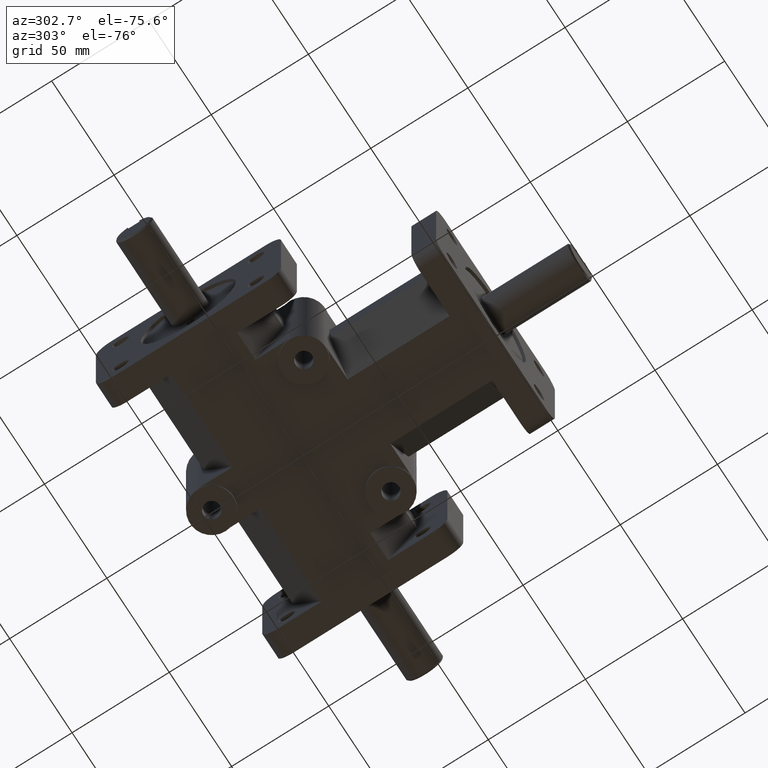
[diagram: clean part render]
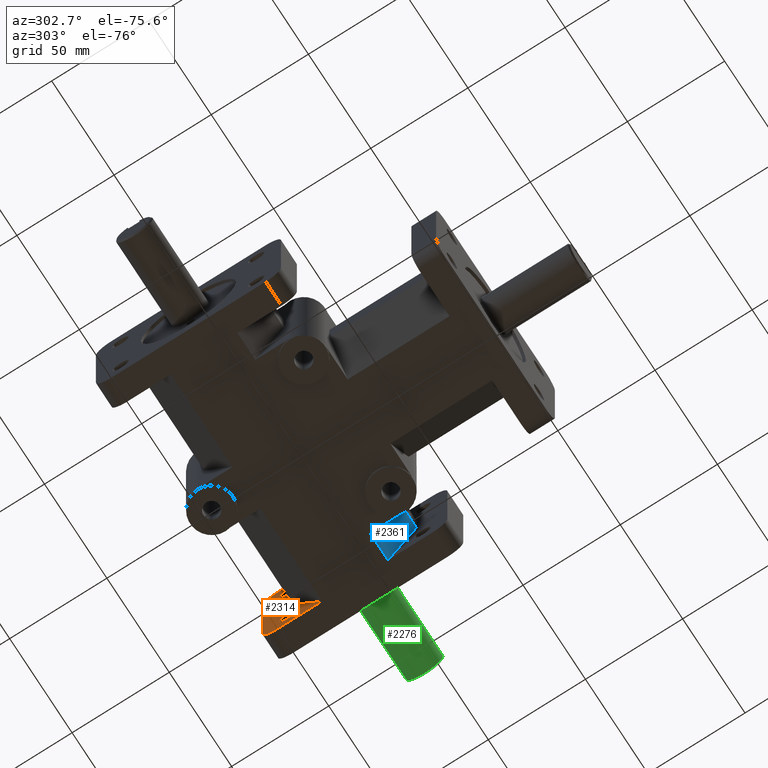
[diagram: same view with three faces highlighted in distinct colors, each labeled with its STEP entity id]
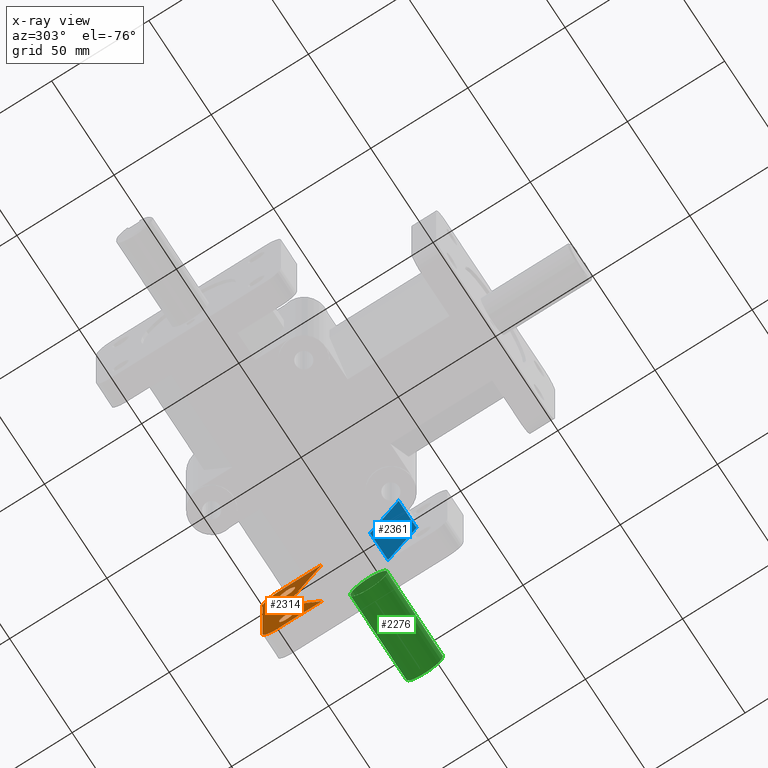
[diagram: x-ray of the same camera — body ghosted, the three highlighted faces saturated]
A machine part, auxiliary view with three faces highlighted in distinct colors.
The next image is the same camera in x-ray (body ghosted, the three faces saturated) — at least one of them is partly hidden behind the body in this view.
Their STEP definitions:

[orange] entity #2314 — the highlighted planar face has unit normal (-1, 0, 0).
#24=FACE_BOUND('',#334,.T.);
#25=FACE_BOUND('',#335,.T.);
#87=PLANE('',#2514);
#195=FACE_OUTER_BOUND('',#333,.T.);
#333=EDGE_LOOP('',(#1758,#1759,#1760,#1761,#1762,#1763,#1764,#1765));
#334=EDGE_LOOP('',(#1766));
#335=EDGE_LOOP('',(#1767));
#518=LINE('',#3632,#740);
#519=LINE('',#3634,#741);
#520=LINE('',#3636,#742);
#521=LINE('',#3638,#743);
#522=LINE('',#3639,#744);
#523=LINE('',#3640,#745);
#740=VECTOR('',#2921,1.);
#741=VECTOR('',#2922,1.);
#742=VECTOR('',#2923,1.);
#743=VECTOR('',#2924,1.);
#744=VECTOR('',#2925,1.);
#745=VECTOR('',#2926,1.);
#930=CIRCLE('',#2480,7.874);
#932=CIRCLE('',#2483,7.874);
#953=CIRCLE('',#2515,4.15925);
#954=CIRCLE('',#2516,4.15925);
#1058=VERTEX_POINT('',#3526);
#1059=VERTEX_POINT('',#3528);
#1062=VERTEX_POINT('',#3535);
#1063=VERTEX_POINT('',#3537);
#1104=VERTEX_POINT('',#3631);
#1105=VERTEX_POINT('',#3633);
#1106=VERTEX_POINT('',#3635);
#1107=VERTEX_POINT('',#3637);
#1108=VERTEX_POINT('',#3641);
#1109=VERTEX_POINT('',#3643);
#1306=EDGE_CURVE('',#1058,#1059,#930,.T.);
#1310=EDGE_CURVE('',#1062,#1063,#932,.T.);
#1352=EDGE_CURVE('',#1058,#1104,#518,.T.);
#1353=EDGE_CURVE('',#1105,#1104,#519,.F.);
#1354=EDGE_CURVE('',#1106,#1105,#520,.T.);
#1355=EDGE_CURVE('',#1107,#1106,#521,.F.);
#1356=EDGE_CURVE('',#1107,#1063,#522,.T.);
#1357=EDGE_CURVE('',#1062,#1059,#523,.T.);
#1358=EDGE_CURVE('',#1108,#1108,#953,.T.);
#1359=EDGE_CURVE('',#1109,#1109,#954,.T.);
#1758=ORIENTED_EDGE('',*,*,#1306,.F.);
#1759=ORIENTED_EDGE('',*,*,#1352,.T.);
#1760=ORIENTED_EDGE('',*,*,#1353,.F.);
#1761=ORIENTED_EDGE('',*,*,#1354,.F.);
#1762=ORIENTED_EDGE('',*,*,#1355,.F.);
#1763=ORIENTED_EDGE('',*,*,#1356,.T.);
#1764=ORIENTED_EDGE('',*,*,#1310,.F.);
#1765=ORIENTED_EDGE('',*,*,#1357,.T.);
#1766=ORIENTED_EDGE('',*,*,#1358,.T.);
#1767=ORIENTED_EDGE('',*,*,#1359,.T.);
#2314=ADVANCED_FACE('',(#195,#24,#25),#87,.T.);
#2480=AXIS2_PLACEMENT_3D('',#3529,#2828,#2829);
#2483=AXIS2_PLACEMENT_3D('',#3538,#2836,#2837);
#2514=AXIS2_PLACEMENT_3D('',#3630,#2919,#2920);
#2515=AXIS2_PLACEMENT_3D('',#3642,#2927,#2928);
#2516=AXIS2_PLACEMENT_3D('',#3644,#2929,#2930);
#2828=DIRECTION('center_axis',(1.,0.,0.));
#2829=DIRECTION('ref_axis',(0.,0.707106781186548,-0.707106781186547));
#2836=DIRECTION('center_axis',(1.,0.,0.));
#2837=DIRECTION('ref_axis',(0.,0.707106781186548,0.707106781186547));
#2919=DIRECTION('center_axis',(-1.,0.,0.));
#2920=DIRECTION('ref_axis',(0.,1.,0.));
#2921=DIRECTION('',(0.,-1.,0.));
#2922=DIRECTION('',(0.,0.499999825156179,0.866025504730542));
#2923=DIRECTION('',(0.,0.,-1.));
#2924=DIRECTION('',(0.,-0.499999825156179,0.866025504730542));
#2925=DIRECTION('',(0.,1.,0.));
#2926=DIRECTION('',(0.,0.,-1.));
#2927=DIRECTION('center_axis',(1.,0.,0.));
#2928=DIRECTION('ref_axis',(0.,1.,0.));
#2929=DIRECTION('center_axis',(1.,0.,0.));
#2930=DIRECTION('ref_axis',(0.,1.,0.));
#3526=CARTESIAN_POINT('',(60.325,150.876,-31.75));
#3528=CARTESIAN_POINT('',(60.325,158.75,-23.876));
#3529=CARTESIAN_POINT('Origin',(60.325,150.876,-23.876));
#3535=CARTESIAN_POINT('',(60.325,158.75,23.876));
#3537=CARTESIAN_POINT('',(60.325,150.876,31.75));
#3538=CARTESIAN_POINT('Origin',(60.325,150.876,23.876));
#3630=CARTESIAN_POINT('Origin',(60.325,158.75,0.));
#3631=CARTESIAN_POINT('',(60.325,128.21031,-31.75));
#3632=CARTESIAN_POINT('',(60.325,120.774952872698,-31.75));
#3633=CARTESIAN_POINT('',(60.325,142.875,-6.35));
#3634=CARTESIAN_POINT('',(60.325,142.568016120181,-6.88171192486159));
#3635=CARTESIAN_POINT('',(60.325,142.875,6.35));
#3636=CARTESIAN_POINT('',(60.325,142.875,0.));
#3637=CARTESIAN_POINT('',(60.325,128.21031,31.75));
#3638=CARTESIAN_POINT('',(60.325,142.568016120181,6.88171192486159));
#3639=CARTESIAN_POINT('',(60.325,142.875,31.75));
#3640=CARTESIAN_POINT('',(60.325,158.75,0.));
#3641=CARTESIAN_POINT('',(60.325,141.89075,-20.6375));
#3642=CARTESIAN_POINT('Origin',(60.325,146.05,-20.6375));
#3643=CARTESIAN_POINT('',(60.325,141.89075,20.6375));
#3644=CARTESIAN_POINT('Origin',(60.325,146.05,20.6375));

[blue] entity #2361 — the highlighted planar face has unit normal (0, -0.866, -0.5).
#115=PLANE('',#2610);
#242=FACE_OUTER_BOUND('',#399,.T.);
#399=EDGE_LOOP('',(#2035,#2036,#2037,#2038));
#527=LINE('',#3653,#749);
#541=LINE('',#3691,#763);
#636=LINE('',#3957,#858);
#637=LINE('',#3958,#859);
#749=VECTOR('',#2936,1.);
#763=VECTOR('',#2972,1.);
#858=VECTOR('',#3231,1.);
#859=VECTOR('',#3232,1.);
#1112=VERTEX_POINT('',#3650);
#1113=VERTEX_POINT('',#3652);
#1126=VERTEX_POINT('',#3690);
#1215=VERTEX_POINT('',#3956);
#1363=EDGE_CURVE('',#1113,#1112,#527,.F.);
#1385=EDGE_CURVE('',#1126,#1113,#541,.T.);
#1519=EDGE_CURVE('',#1215,#1126,#636,.F.);
#1520=EDGE_CURVE('',#1112,#1215,#637,.T.);
#2035=ORIENTED_EDGE('',*,*,#1519,.T.);
#2036=ORIENTED_EDGE('',*,*,#1385,.T.);
#2037=ORIENTED_EDGE('',*,*,#1363,.T.);
#2038=ORIENTED_EDGE('',*,*,#1520,.T.);
#2361=ADVANCED_FACE('',(#242),#115,.T.);
#2610=AXIS2_PLACEMENT_3D('',#3955,#3229,#3230);
#2936=DIRECTION('',(0.,0.499999825156179,-0.866025504730542));
#2972=DIRECTION('',(1.,0.,0.));
#3229=DIRECTION('center_axis',(0.,-0.866025504730542,-0.499999825156179));
#3230=DIRECTION('ref_axis',(0.,-0.499999825156179,0.866025504730542));
#3231=DIRECTION('',(0.,-0.499999825156179,0.866025504730542));
#3232=DIRECTION('',(-1.,0.,0.));
#3650=CARTESIAN_POINT('',(60.325,79.375,-6.35));
#3652=CARTESIAN_POINT('',(60.325,94.03969,-31.75));
#3653=CARTESIAN_POINT('',(60.325,81.6663574919962,-10.318749444871));
#3690=CARTESIAN_POINT('',(46.0375,94.03969,-31.75));
#3691=CARTESIAN_POINT('',(23.01875,94.03969,-31.75));
#3955=CARTESIAN_POINT('Origin',(23.01875,86.707345,-19.05));
#3956=CARTESIAN_POINT('',(46.0375,79.375,-6.35));
#3957=CARTESIAN_POINT('',(46.0375,81.2694827695608,-9.63134194086908));
#3958=CARTESIAN_POINT('',(23.01875,79.375,-6.35));

[green] entity #2276 — the highlighted cylindrical surface (bore or boss wall) has radius 9.5 mm, axis along (1, 0, 0).
#157=FACE_OUTER_BOUND('',#286,.T.);
#286=EDGE_LOOP('',(#1587,#1588,#1589,#1590,#1591,#1592,#1593,#1594));
#455=LINE('',#3363,#677);
#459=LINE('',#3376,#681);
#465=LINE('',#3395,#687);
#677=VECTOR('',#2672,1.);
#681=VECTOR('',#2678,1.);
#687=VECTOR('',#2694,9.5);
#902=CIRCLE('',#2425,9.5);
#903=CIRCLE('',#2427,9.5);
#904=CIRCLE('',#2428,9.5);
#905=CIRCLE('',#2429,9.5);
#1008=VERTEX_POINT('',#3361);
#1009=VERTEX_POINT('',#3362);
#1013=VERTEX_POINT('',#3374);
#1014=VERTEX_POINT('',#3375);
#1018=VERTEX_POINT('',#3392);
#1019=VERTEX_POINT('',#3394);
#1232=EDGE_CURVE('',#1008,#1009,#455,.T.);
#1237=EDGE_CURVE('',#1013,#1014,#459,.T.);
#1244=EDGE_CURVE('',#1014,#1008,#902,.T.);
#1245=EDGE_CURVE('',#1018,#1009,#903,.T.);
#1246=EDGE_CURVE('',#1018,#1019,#465,.T.);
#1247=EDGE_CURVE('',#1019,#1019,#904,.T.);
#1248=EDGE_CURVE('',#1013,#1018,#905,.T.);
#1587=ORIENTED_EDGE('',*,*,#1232,.T.);
#1588=ORIENTED_EDGE('',*,*,#1245,.F.);
#1589=ORIENTED_EDGE('',*,*,#1246,.T.);
#1590=ORIENTED_EDGE('',*,*,#1247,.F.);
#1591=ORIENTED_EDGE('',*,*,#1246,.F.);
#1592=ORIENTED_EDGE('',*,*,#1248,.F.);
#1593=ORIENTED_EDGE('',*,*,#1237,.T.);
#1594=ORIENTED_EDGE('',*,*,#1244,.T.);
#2228=CYLINDRICAL_SURFACE('',#2426,9.5);
#2276=ADVANCED_FACE('',(#157),#2228,.T.);
#2425=AXIS2_PLACEMENT_3D('',#3390,#2688,#2689);
#2426=AXIS2_PLACEMENT_3D('',#3391,#2690,#2691);
#2427=AXIS2_PLACEMENT_3D('',#3393,#2692,#2693);
#2428=AXIS2_PLACEMENT_3D('',#3396,#2695,#2696);
#2429=AXIS2_PLACEMENT_3D('',#3397,#2697,#2698);
#2672=DIRECTION('',(1.,0.,0.));
#2678=DIRECTION('',(-1.,0.,0.));
#2688=DIRECTION('center_axis',(-1.,0.,0.));
#2689=DIRECTION('ref_axis',(0.,1.,0.));
#2690=DIRECTION('center_axis',(1.,0.,0.));
#2691=DIRECTION('ref_axis',(0.,1.,0.));
#2692=DIRECTION('center_axis',(1.,0.,0.));
#2693=DIRECTION('ref_axis',(0.,-1.,0.));
#2694=DIRECTION('',(-1.,0.,0.));
#2695=DIRECTION('center_axis',(-1.,0.,0.));
#2696=DIRECTION('ref_axis',(0.,1.,0.));
#2697=DIRECTION('center_axis',(1.,0.,0.));
#2698=DIRECTION('ref_axis',(0.,-1.,0.));
#3361=CARTESIAN_POINT('',(78.925,114.125,9.01387818865997));
#3362=CARTESIAN_POINT('',(116.263,114.125,9.01387818865997));
#3363=CARTESIAN_POINT('',(94.263,114.125,9.01387818865997));
#3374=CARTESIAN_POINT('',(116.263,108.125,9.01387818865997));
#3375=CARTESIAN_POINT('',(78.925,108.125,9.01387818865997));
#3376=CARTESIAN_POINT('',(94.263,108.125,9.01387818865997));
#3390=CARTESIAN_POINT('Origin',(78.925,111.125,0.));
#3391=CARTESIAN_POINT('Origin',(94.263,111.125,0.));
#3392=CARTESIAN_POINT('',(116.263,101.625,-1.16341445918999E-15));
#3393=CARTESIAN_POINT('Origin',(116.263,111.125,0.));
#3394=CARTESIAN_POINT('',(71.501,101.625,-1.16341445918999E-15));
#3395=CARTESIAN_POINT('',(94.263,101.625,-1.16341445918999E-15));
#3396=CARTESIAN_POINT('Origin',(71.501,111.125,0.));
#3397=CARTESIAN_POINT('Origin',(116.263,111.125,0.));